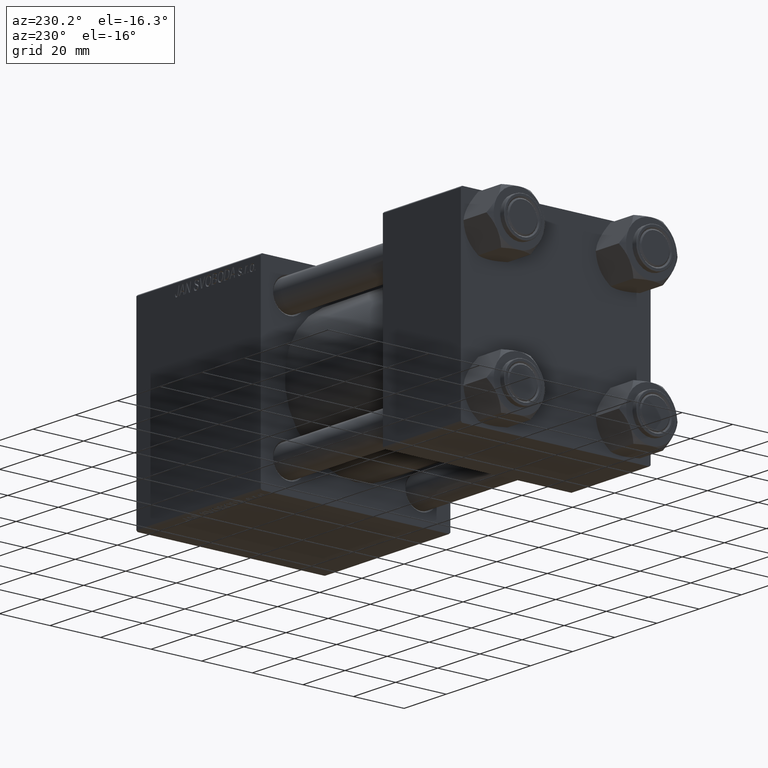
[diagram: clean part render]
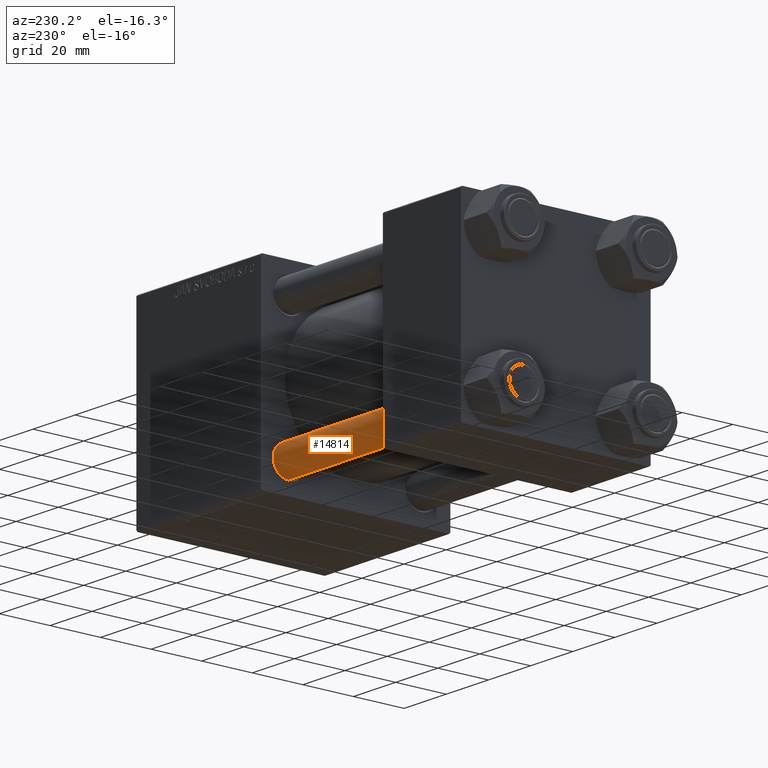
[diagram: same view with one face highlighted and labeled with its STEP entity id]
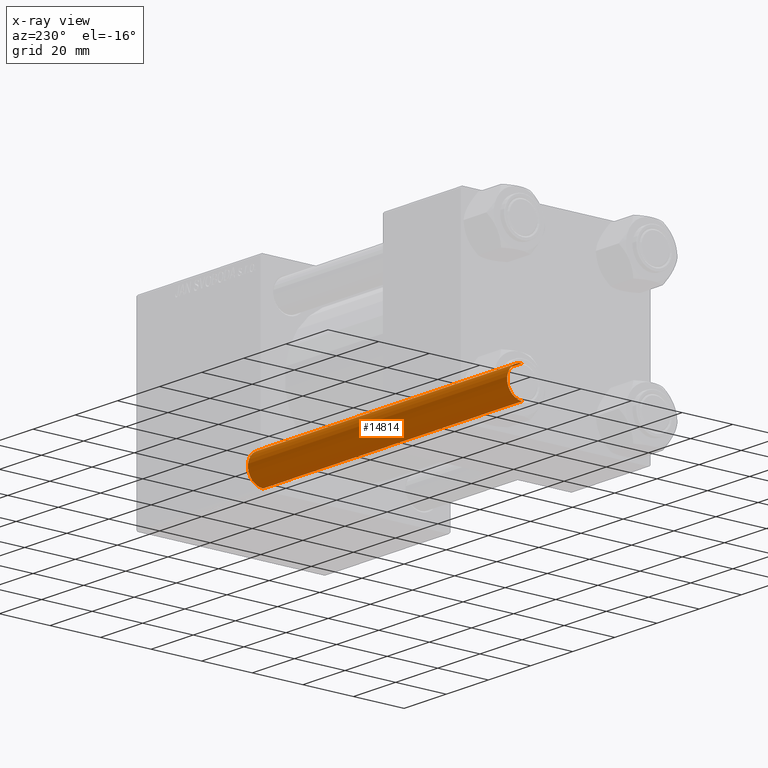
[diagram: x-ray of the same camera — body ghosted, the highlighted face saturated]
A machine part, auxiliary view. The second image highlights one B-rep face of the part: STEP entity #14814.
The next image is the same camera in x-ray: the body ghosted, the highlighted face saturated — about 0% of this face is hidden behind the body in this view.
In plain terms, the highlighted cylindrical surface (edge-blend (fillet) strip) has radius 6 mm, axis along (1, -0, -0).
Its self-contained STEP definition (entity closure, byte-faithful):
#2394 = DIRECTION ( 'NONE',  ( 1.000000000000000000, 0.000000000000000000, 0.000000000000000000 ) ) ;
#6726 = EDGE_CURVE ( 'NONE', #38353, #31312, #19107, .T. ) ;
#9735 = VECTOR ( 'NONE', #22368, 1000.000000000000000 ) ;
#13349 = EDGE_CURVE ( 'NONE', #38353, #45371, #32466, .T. ) ;
#14814 = ADVANCED_FACE ( 'NONE', ( #23233 ), #34945, .T. ) ;
#15373 = ORIENTED_EDGE ( 'NONE', *, *, #35455, .T. ) ;
#15813 = DIRECTION ( 'NONE',  ( -0.000000000000000000, -0.000000000000000000, -1.000000000000000000 ) ) ;
#15959 = ORIENTED_EDGE ( 'NONE', *, *, #48535, .T. ) ;
#18925 = EDGE_LOOP ( 'NONE', ( #35694, #15373, #15959, #48293 ) ) ;
#19107 = LINE ( 'NONE', #46541, #47775 ) ;
#21896 = AXIS2_PLACEMENT_3D ( 'NONE', #42879, #46681, #30946 ) ;
#22368 = DIRECTION ( 'NONE',  ( -0.000000000000000000, -0.000000000000000000, -1.000000000000000000 ) ) ;
#23233 = FACE_OUTER_BOUND ( 'NONE', #18925, .T. ) ;
#25516 = CARTESIAN_POINT ( 'NONE',  ( 6.000000000000000888, 7.347880794884120722E-16, 123.5000000000000426 ) ) ;
#26542 = CARTESIAN_POINT ( 'NONE',  ( 0.000000000000000000, 0.000000000000000000, 124.0000000000000000 ) ) ;
#29267 = AXIS2_PLACEMENT_3D ( 'NONE', #26542, #42051, #33926 ) ;
#30946 = DIRECTION ( 'NONE',  ( 1.000000000000000000, 0.000000000000000000, 0.000000000000000000 ) ) ;
#31312 = VERTEX_POINT ( 'NONE', #31817 ) ;
#31739 = VERTEX_POINT ( 'NONE', #37266 ) ;
#31817 = CARTESIAN_POINT ( 'NONE',  ( -6.000000000000000888, 0.000000000000000000, 0.4999999999999865663 ) ) ;
#32466 = CIRCLE ( 'NONE', #21896, 6.000000000000000888 ) ;
#33926 = DIRECTION ( 'NONE',  ( -1.000000000000000000, 0.000000000000000000, 0.000000000000000000 ) ) ;
#34832 = CARTESIAN_POINT ( 'NONE',  ( 6.000000000000000888, 7.347880794884120722E-16, 124.0000000000000000 ) ) ;
#34945 = CYLINDRICAL_SURFACE ( 'NONE', #29267, 6.000000000000000888 ) ;
#34965 = CARTESIAN_POINT ( 'NONE',  ( -6.000000000000000888, 0.000000000000000000, 123.5000000000000426 ) ) ;
#35455 = EDGE_CURVE ( 'NONE', #45371, #31739, #42694, .T. ) ;
#35694 = ORIENTED_EDGE ( 'NONE', *, *, #13349, .T. ) ;
#36274 = AXIS2_PLACEMENT_3D ( 'NONE', #44034, #40972, #2394 ) ;
#37266 = CARTESIAN_POINT ( 'NONE',  ( 6.000000000000000888, 7.347880794884120722E-16, 0.4999999999999865663 ) ) ;
#38353 = VERTEX_POINT ( 'NONE', #34965 ) ;
#39527 = CIRCLE ( 'NONE', #36274, 6.000000000000000888 ) ;
#40972 = DIRECTION ( 'NONE',  ( -0.000000000000000000, -0.000000000000000000, 1.000000000000000000 ) ) ;
#42051 = DIRECTION ( 'NONE',  ( -0.000000000000000000, -0.000000000000000000, -1.000000000000000000 ) ) ;
#42694 = LINE ( 'NONE', #34832, #9735 ) ;
#42879 = CARTESIAN_POINT ( 'NONE',  ( 0.000000000000000000, 0.000000000000000000, 123.5000000000000426 ) ) ;
#44034 = CARTESIAN_POINT ( 'NONE',  ( 0.000000000000000000, 0.000000000000000000, 0.4999999999999865663 ) ) ;
#45371 = VERTEX_POINT ( 'NONE', #25516 ) ;
#46541 = CARTESIAN_POINT ( 'NONE',  ( -6.000000000000000888, 0.000000000000000000, 124.0000000000000000 ) ) ;
#46681 = DIRECTION ( 'NONE',  ( 0.000000000000000000, 0.000000000000000000, -1.000000000000000000 ) ) ;
#47775 = VECTOR ( 'NONE', #15813, 1000.000000000000000 ) ;
#48293 = ORIENTED_EDGE ( 'NONE', *, *, #6726, .F. ) ;
#48535 = EDGE_CURVE ( 'NONE', #31739, #31312, #39527, .T. ) ;